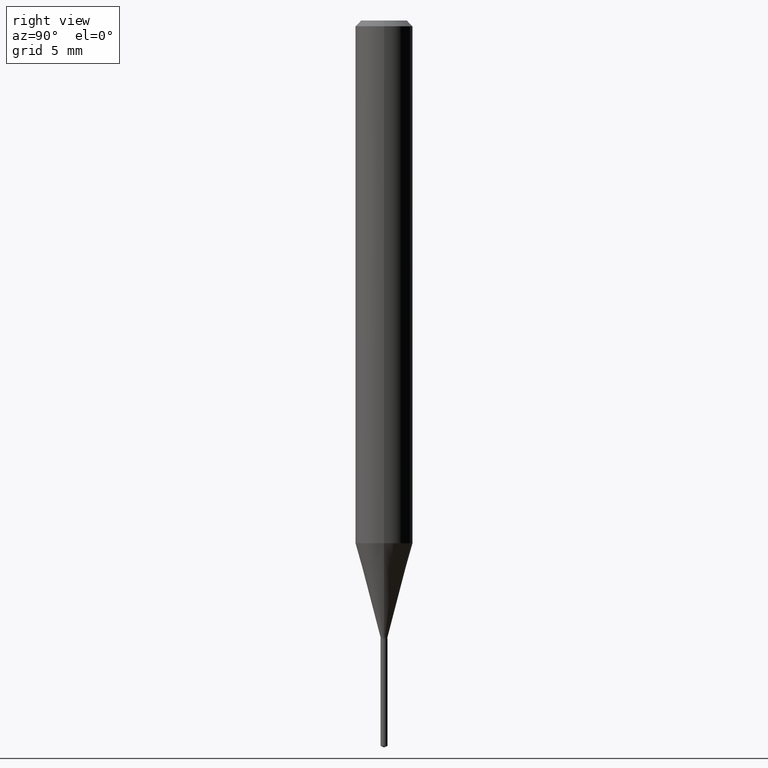
[diagram: clean part render]
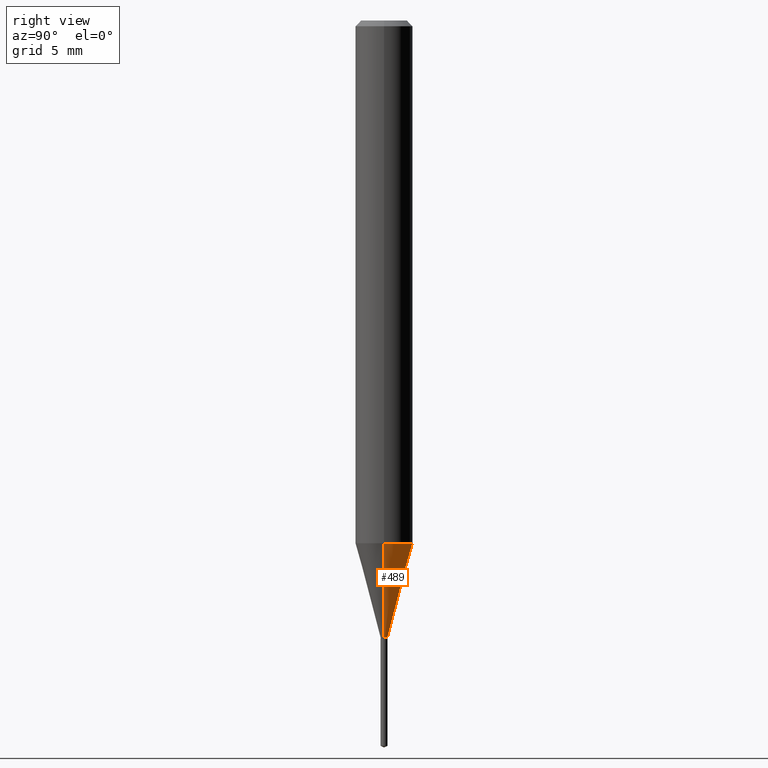
[diagram: same view with one face highlighted and labeled with its STEP entity id]
A machine part, right view. The second image highlights one B-rep face of the part: STEP entity #489.
In plain terms, the highlighted conical surface has half-angle 15 deg.
Its self-contained STEP definition (entity closure, byte-faithful):
#6 = ORIENTED_EDGE ( 'NONE', *, *, #26, .T. ) ;
#19 = CARTESIAN_POINT ( 'NONE',  ( -0.05905000000000013710, -3.336280682603885216E-15, -1.075719960546796861 ) ) ;
#26 = EDGE_CURVE ( 'NONE', #33, #380, #404, .T. ) ;
#27 = CARTESIAN_POINT ( 'NONE',  ( 0.007100000000000000408, -4.482363742806830057E-15, -1.269600000000000062 ) ) ;
#33 = VERTEX_POINT ( 'NONE', #301 ) ;
#38 = CARTESIAN_POINT ( 'NONE',  ( -0.007100000000000000408, -4.385129358627364316E-15, -1.269600000000000062 ) ) ;
#56 = EDGE_CURVE ( 'NONE', #33, #459, #101, .T. ) ;
#60 = LINE ( 'NONE', #269, #114 ) ;
#65 = DIRECTION ( 'NONE',  ( -2.445468806185136597E-29, 3.491481338843145583E-15, 1.000000000000000000 ) ) ;
#67 = CARTESIAN_POINT ( 'NONE',  ( 3.104767196332649259E-29, -4.432784707795257778E-15, -1.269600000000000062 ) ) ;
#73 = FACE_OUTER_BOUND ( 'NONE', #375, .T. ) ;
#101 = LINE ( 'NONE', #27, #358 ) ;
#114 = VECTOR ( 'NONE', #372, 39.37007874015747433 ) ;
#117 = CARTESIAN_POINT ( 'NONE',  ( 0.05905000000000013710, -4.168200114187600418E-15, -1.075719960546796861 ) ) ;
#146 = VERTEX_POINT ( 'NONE', #19 ) ;
#150 = DIRECTION ( 'NONE',  ( -2.445468806185136597E-29, 3.491481338843145583E-15, 1.000000000000000000 ) ) ;
#155 = CARTESIAN_POINT ( 'NONE',  ( 2.630639607707897401E-29, -3.755856168070225498E-15, -1.075719960546796861 ) ) ;
#166 = ORIENTED_EDGE ( 'NONE', *, *, #322, .T. ) ;
#173 = CARTESIAN_POINT ( 'NONE',  ( 3.104767196332649259E-29, -4.432784707795257778E-15, -1.269600000000000062 ) ) ;
#221 = EDGE_CURVE ( 'NONE', #459, #146, #378, .T. ) ;
#231 = ORIENTED_EDGE ( 'NONE', *, *, #221, .F. ) ;
#241 = DIRECTION ( 'NONE',  ( -2.445468806185136597E-29, 3.491481338843145583E-15, 1.000000000000000000 ) ) ;
#244 = AXIS2_PLACEMENT_3D ( 'NONE', #67, #241, #441 ) ;
#269 = CARTESIAN_POINT ( 'NONE',  ( -0.007100000000000000408, -4.382336173556289910E-15, -1.269600000000000062 ) ) ;
#301 = CARTESIAN_POINT ( 'NONE',  ( 0.007100000000000000408, -4.482363742806830057E-15, -1.269600000000000062 ) ) ;
#310 = DIRECTION ( 'NONE',  ( 1.000000000000000000, -6.982962677686265133E-15, 0.000000000000000000 ) ) ;
#322 = EDGE_CURVE ( 'NONE', #380, #146, #60, .T. ) ;
#358 = VECTOR ( 'NONE', #432, 39.37007874015747433 ) ;
#372 = DIRECTION ( 'NONE',  ( -0.2588190451025213501, 5.211531920934551042E-15, 0.9659258262890682012 ) ) ;
#375 = EDGE_LOOP ( 'NONE', ( #6, #166, #231, #394 ) ) ;
#378 = CIRCLE ( 'NONE', #410, 0.05905000000000013016 ) ;
#380 = VERTEX_POINT ( 'NONE', #38 ) ;
#394 = ORIENTED_EDGE ( 'NONE', *, *, #56, .F. ) ;
#404 = CIRCLE ( 'NONE', #455, 0.007100000000000000408 ) ;
#410 = AXIS2_PLACEMENT_3D ( 'NONE', #155, #65, #310 ) ;
#432 = DIRECTION ( 'NONE',  ( 0.2588190451025213501, 1.565188264969621968E-15, 0.9659258262890682012 ) ) ;
#441 = DIRECTION ( 'NONE',  ( 1.000000000000000000, -6.982962677686291954E-15, 0.000000000000000000 ) ) ;
#445 = CONICAL_SURFACE ( 'NONE', #244, 0.007100000000000000408, 0.2617993877991500740 ) ;
#455 = AXIS2_PLACEMENT_3D ( 'NONE', #173, #150, #473 ) ;
#459 = VERTEX_POINT ( 'NONE', #117 ) ;
#473 = DIRECTION ( 'NONE',  ( 1.000000000000000000, -6.982962677686291954E-15, 0.000000000000000000 ) ) ;
#489 = ADVANCED_FACE ( 'NONE', ( #73 ), #445, .T. ) ;